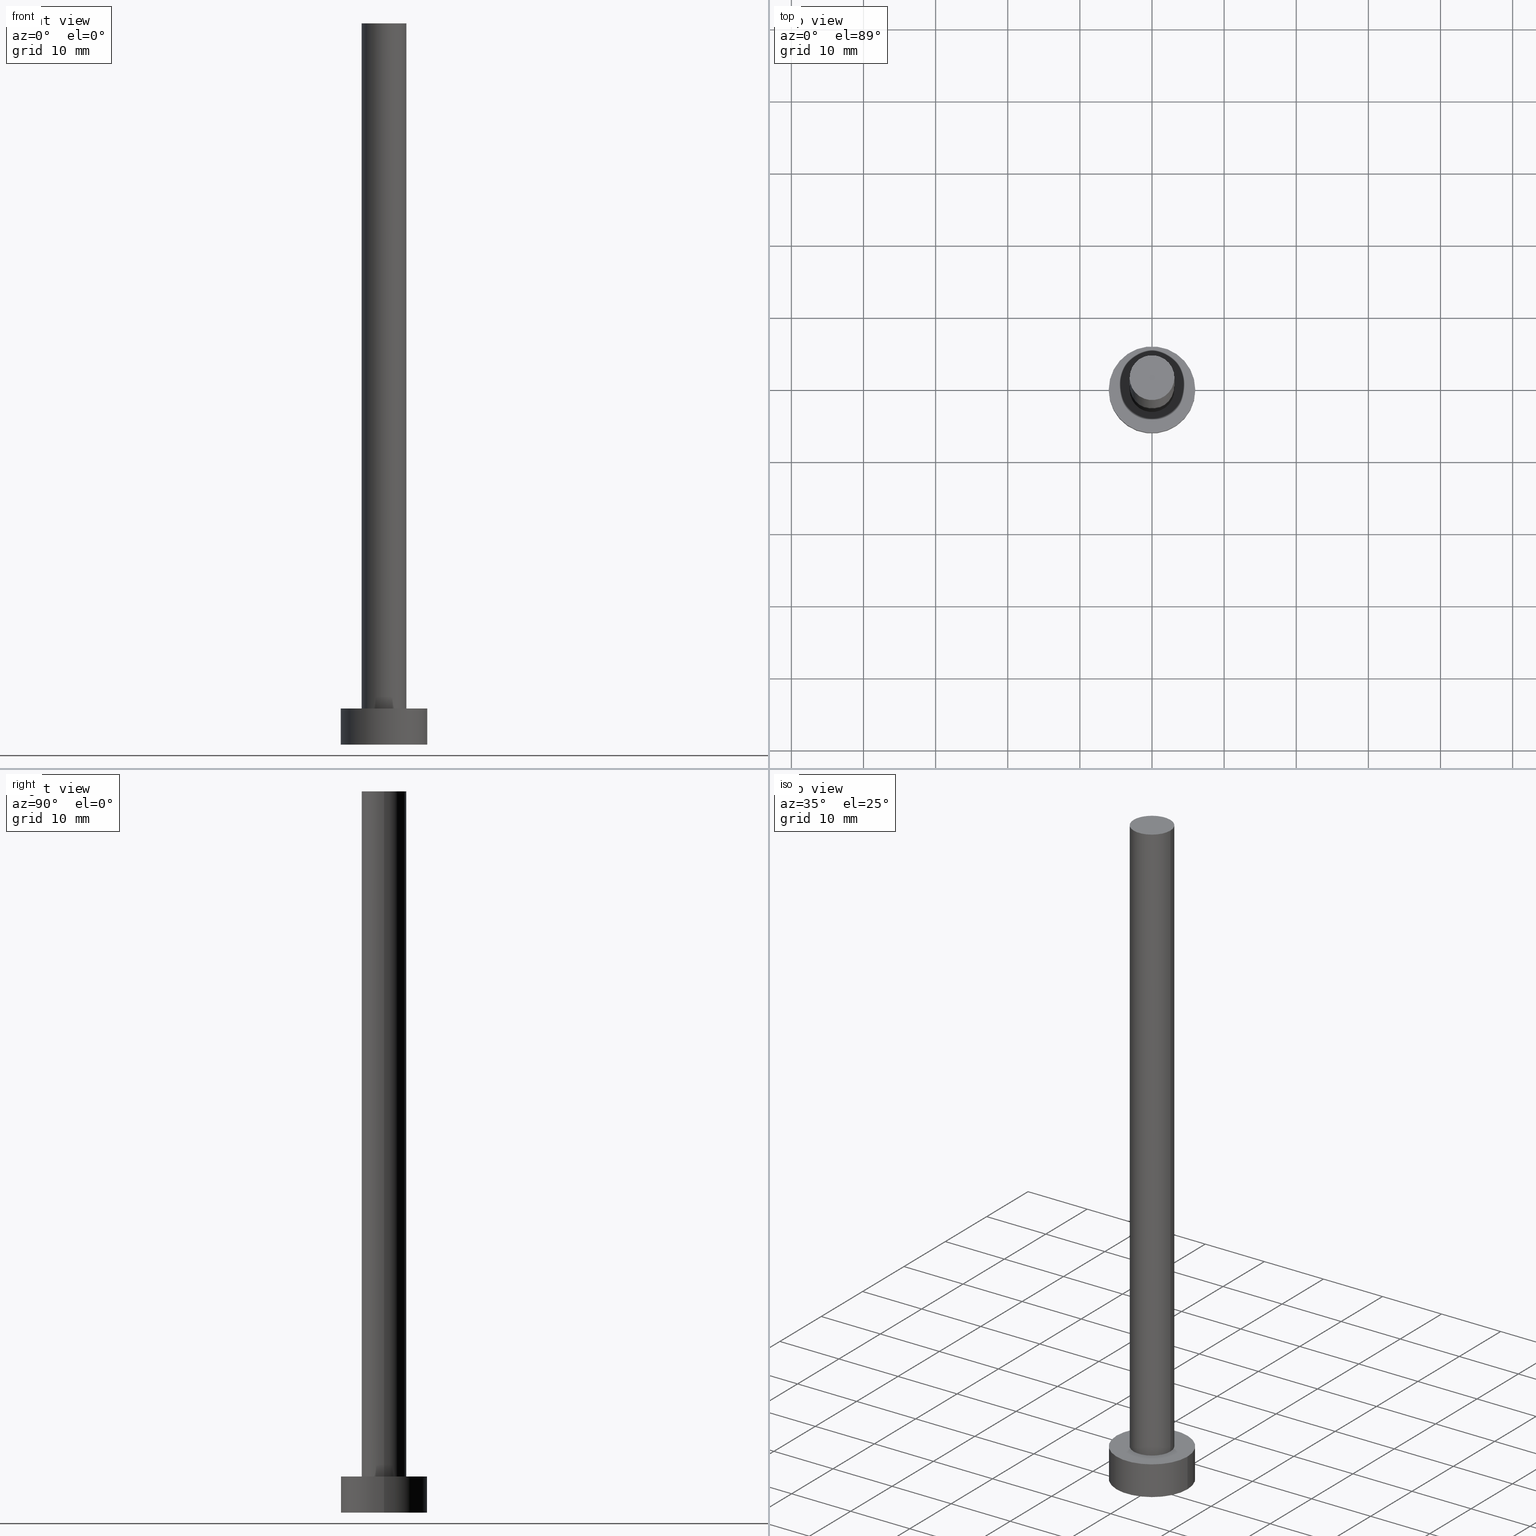
[diagram: canonical four-view strip — front | top / right | iso, engineering-drawing reading convention]
A machine part, canonical four-view strip (front | top / right | iso — engineering-drawing reading convention). The complete STEP part file that produces these views, byte-faithful:
ISO-10303-21;
HEADER;
FILE_DESCRIPTION (( 'STEP AP203' ),
    '1' );
FILE_NAME ('ae26.STEP',
    '2023-02-13T14:06:12',
    ( '' ),
    ( '' ),
    'SwSTEP 2.0',
    'SolidWorks 2019',
    '' );
FILE_SCHEMA (( 'CONFIG_CONTROL_DESIGN' ));
ENDSEC;

DATA;
#1 = CYLINDRICAL_SURFACE ( 'NONE', #151, 3.100000000000000089 ) ;
#2 = PERSON_AND_ORGANIZATION ( #43, #50 ) ;
#3 = DIRECTION ( 'NONE',  ( -0.000000000000000000, -0.000000000000000000, -1.000000000000000000 ) ) ;
#4 = PRODUCT_RELATED_PRODUCT_CATEGORY ( 'detail', '', ( #253 ) ) ;
#5 = VERTEX_POINT ( 'NONE', #123 ) ;
#6 = DIRECTION ( 'NONE',  ( -1.000000000000000000, 0.000000000000000000, 0.000000000000000000 ) ) ;
#7 = DIRECTION ( 'NONE',  ( 0.000000000000000000, 0.000000000000000000, 1.000000000000000000 ) ) ;
#8 = CARTESIAN_POINT ( 'NONE',  ( -6.000000000000000888, 0.000000000000000000, 5.000000000000000000 ) ) ;
#9 = CYLINDRICAL_SURFACE ( 'NONE', #167, 6.000000000000000888 ) ;
#10 = DIRECTION ( 'NONE',  ( -0.000000000000000000, -0.000000000000000000, -1.000000000000000000 ) ) ;
#11 = EDGE_CURVE ( 'NONE', #116, #5, #95, .T. ) ;
#12 = DIRECTION ( 'NONE',  ( 1.000000000000000000, 0.000000000000000000, 0.000000000000000000 ) ) ;
#13 = PRODUCT_DEFINITION ( 'NEZN�M�', '', #246, #177 ) ;
#14 = SECURITY_CLASSIFICATION ( '', '', #55 ) ;
#15 = COORDINATED_UNIVERSAL_TIME_OFFSET ( 1, 0, .AHEAD. ) ;
#16 = DATE_TIME_ROLE ( 'creation_date' ) ;
#17 = AXIS2_PLACEMENT_3D ( 'NONE', #41, #98, #147 ) ;
#18 = CALENDAR_DATE ( 2023, 13, 2 ) ;
#19 = UNCERTAINTY_MEASURE_WITH_UNIT (LENGTH_MEASURE( 1.000000000000000082E-05 ), #190, 'distance_accuracy_value', 'NONE');
#20 = ORIENTED_EDGE ( 'NONE', *, *, #196, .F. ) ;
#21 = PERSON_AND_ORGANIZATION ( #43, #50 ) ;
#22 = ORIENTED_EDGE ( 'NONE', *, *, #255, .F. ) ;
#23 = MANIFOLD_SOLID_BREP ( 'P�idat vysunut�m3', #125 ) ;
#24 = ORIENTED_EDGE ( 'NONE', *, *, #176, .T. ) ;
#25 = ORIENTED_EDGE ( 'NONE', *, *, #66, .T. ) ;
#26 = AXIS2_PLACEMENT_3D ( 'NONE', #97, #110, #229 ) ;
#27 = LINE ( 'NONE', #150, #186 ) ;
#28 = CARTESIAN_POINT ( 'NONE',  ( 0.000000000000000000, 0.000000000000000000, 0.000000000000000000 ) ) ;
#29 = DIRECTION ( 'NONE',  ( -1.000000000000000000, 0.000000000000000000, 0.000000000000000000 ) ) ;
#30 = CIRCLE ( 'NONE', #82, 6.000000000000000888 ) ;
#31 = DIRECTION ( 'NONE',  ( -0.000000000000000000, -0.000000000000000000, -1.000000000000000000 ) ) ;
#32 = APPLICATION_CONTEXT ( 'configuration controlled 3d designs of mechanical parts and assemblies' ) ;
#33 = FACE_BOUND ( 'NONE', #141, .T. ) ;
#34 = PERSON_AND_ORGANIZATION_ROLE ( 'creator' ) ;
#35 = DATE_AND_TIME ( #207, #232 ) ;
#36 = APPROVAL_DATE_TIME ( #35, #250 ) ;
#37 = COORDINATED_UNIVERSAL_TIME_OFFSET ( 1, 0, .AHEAD. ) ;
#38 = EDGE_CURVE ( 'NONE', #237, #116, #137, .T. ) ;
#39 = ADVANCED_FACE ( 'NONE', ( #179 ), #1, .T. ) ;
#40 = ORIENTED_EDGE ( 'NONE', *, *, #11, .F. ) ;
#41 = CARTESIAN_POINT ( 'NONE',  ( 0.000000000000000000, 0.000000000000000000, 100.0000000000000000 ) ) ;
#42 = ORIENTED_EDGE ( 'NONE', *, *, #101, .T. ) ;
#43 = PERSON ( 'NEUR�EN�', 'NEUR�EN�', 'NEUR�EN�', ('NEUR�EN�'), ('NEUR�EN�'), ('NEUR�EN�') ) ;
#44 = EDGE_LOOP ( 'NONE', ( #65, #118, #84, #62 ) ) ;
#45 = LOCAL_TIME ( 15, 6, 12.00000000000000000, #133 ) ;
#46 = CC_DESIGN_DATE_AND_TIME_ASSIGNMENT ( #175, #191, ( #14 ) ) ;
#47 = CARTESIAN_POINT ( 'NONE',  ( 0.000000000000000000, 0.000000000000000000, 5.000000000000000000 ) ) ;
#48 = CARTESIAN_POINT ( 'NONE',  ( 0.000000000000000000, 0.000000000000000000, 100.0000000000000000 ) ) ;
#49 = CARTESIAN_POINT ( 'NONE',  ( 3.100000000000000089, 3.796405077356794918E-16, 5.000000000000000000 ) ) ;
#50 = ORGANIZATION ( 'NEUR�EN�', 'NEUR�EN�', '' ) ;
#51 = DIRECTION ( 'NONE',  ( 0.000000000000000000, 0.000000000000000000, 1.000000000000000000 ) ) ;
#52 = CARTESIAN_POINT ( 'NONE',  ( -6.000000000000000888, 0.000000000000000000, 0.000000000000000000 ) ) ;
#53 = AXIS2_PLACEMENT_3D ( 'NONE', #204, #146, #166 ) ;
#54 = COORDINATED_UNIVERSAL_TIME_OFFSET ( 1, 0, .AHEAD. ) ;
#55 = SECURITY_CLASSIFICATION_LEVEL ( 'unclassified' ) ;
#56 = EDGE_CURVE ( 'NONE', #5, #121, #80, .T. ) ;
#57 = CC_DESIGN_PERSON_AND_ORGANIZATION_ASSIGNMENT ( #2, #158, ( #253 ) ) ;
#58 = DIRECTION ( 'NONE',  ( 0.000000000000000000, 0.000000000000000000, 1.000000000000000000 ) ) ;
#59 = APPROVAL_STATUS ( 'not_yet_approved' ) ;
#60 = ORIENTED_EDGE ( 'NONE', *, *, #85, .T. ) ;
#61 = COORDINATED_UNIVERSAL_TIME_OFFSET ( 1, 0, .AHEAD. ) ;
#62 = ORIENTED_EDGE ( 'NONE', *, *, #131, .F. ) ;
#63 = EDGE_LOOP ( 'NONE', ( #96, #42, #60, #20 ) ) ;
#64 = AXIS2_PLACEMENT_3D ( 'NONE', #199, #78, #218 ) ;
#65 = ORIENTED_EDGE ( 'NONE', *, *, #154, .F. ) ;
#66 = EDGE_CURVE ( 'NONE', #217, #160, #67, .T. ) ;
#67 = CIRCLE ( 'NONE', #127, 3.100000000000000089 ) ;
#68 = PLANE ( 'NONE',  #76 ) ;
#69 = FACE_OUTER_BOUND ( 'NONE', #182, .T. ) ;
#70 = DIRECTION ( 'NONE',  ( 1.000000000000000000, 0.000000000000000000, 0.000000000000000000 ) ) ;
#71 = CARTESIAN_POINT ( 'NONE',  ( 0.000000000000000000, 0.000000000000000000, 5.000000000000000000 ) ) ;
#72 = LOCAL_TIME ( 15, 6, 12.00000000000000000, #61 ) ;
#73 = CARTESIAN_POINT ( 'NONE',  ( 0.000000000000000000, 0.000000000000000000, 5.000000000000000000 ) ) ;
#74 = VECTOR ( 'NONE', #3, 1000.000000000000000 ) ;
#75 = ADVANCED_FACE ( 'NONE', ( #139 ), #216, .T. ) ;
#76 = AXIS2_PLACEMENT_3D ( 'NONE', #28, #105, #185 ) ;
#77 = APPROVAL_ROLE ( '' ) ;
#78 = DIRECTION ( 'NONE',  ( 0.000000000000000000, 0.000000000000000000, 1.000000000000000000 ) ) ;
#79 = DIRECTION ( 'NONE',  ( -0.000000000000000000, -0.000000000000000000, -1.000000000000000000 ) ) ;
#80 = CIRCLE ( 'NONE', #245, 6.000000000000000888 ) ;
#81 = VERTEX_POINT ( 'NONE', #49 ) ;
#82 = AXIS2_PLACEMENT_3D ( 'NONE', #148, #7, #12 ) ;
#83 = ORIENTED_EDGE ( 'NONE', *, *, #154, .T. ) ;
#84 = ORIENTED_EDGE ( 'NONE', *, *, #56, .T. ) ;
#85 = EDGE_CURVE ( 'NONE', #81, #238, #144, .T. ) ;
#86 = CARTESIAN_POINT ( 'NONE',  ( -3.100000000000000089, 0.000000000000000000, 5.000000000000000000 ) ) ;
#87 = LINE ( 'NONE', #8, #210 ) ;
#88 = AXIS2_PLACEMENT_3D ( 'NONE', #48, #10, #126 ) ;
#89 = CARTESIAN_POINT ( 'NONE',  ( -3.100000000000000089, 0.000000000000000000, 100.0000000000000000 ) ) ;
#90 = FACE_OUTER_BOUND ( 'NONE', #44, .T. ) ;
#91 = PLANE ( 'NONE',  #140 ) ;
#92 = APPROVAL_PERSON_ORGANIZATION ( #198, #209, #231 ) ;
#93 = APPROVAL_DATE_TIME ( #215, #202 ) ;
#94 = APPLICATION_PROTOCOL_DEFINITION ( 'international standard', 'config_control_design', 1994, #189 ) ;
#95 = LINE ( 'NONE', #254, #74 ) ;
#96 = ORIENTED_EDGE ( 'NONE', *, *, #66, .F. ) ;
#97 = CARTESIAN_POINT ( 'NONE',  ( 0.000000000000000000, 0.000000000000000000, 0.000000000000000000 ) ) ;
#98 = DIRECTION ( 'NONE',  ( 0.000000000000000000, 0.000000000000000000, 1.000000000000000000 ) ) ;
#99 = ORIENTED_EDGE ( 'NONE', *, *, #85, .F. ) ;
#100 = EDGE_CURVE ( 'NONE', #238, #81, #228, .T. ) ;
#101 = EDGE_CURVE ( 'NONE', #217, #81, #27, .T. ) ;
#102 = EDGE_LOOP ( 'NONE', ( #143, #22, #117, #157 ) ) ;
#103 = CARTESIAN_POINT ( 'NONE',  ( 0.000000000000000000, 0.000000000000000000, 5.000000000000000000 ) ) ;
#104 = DIRECTION ( 'NONE',  ( -0.000000000000000000, -0.000000000000000000, -1.000000000000000000 ) ) ;
#105 = DIRECTION ( 'NONE',  ( 0.000000000000000000, 0.000000000000000000, 1.000000000000000000 ) ) ;
#106 = DIRECTION ( 'NONE',  ( 0.000000000000000000, 0.000000000000000000, 1.000000000000000000 ) ) ;
#107 = PERSON_AND_ORGANIZATION_ROLE ( 'design_supplier' ) ;
#108 = APPROVAL_PERSON_ORGANIZATION ( #252, #202, #138 ) ;
#109 = CALENDAR_DATE ( 2023, 13, 2 ) ;
#110 = DIRECTION ( 'NONE',  ( 0.000000000000000000, 0.000000000000000000, 1.000000000000000000 ) ) ;
#111 = PERSON_AND_ORGANIZATION_ROLE ( 'classification_officer' ) ;
#112 = ADVANCED_BREP_SHAPE_REPRESENTATION ( 'ae26', ( #23, #26 ), #241 ) ;
#113 = CC_DESIGN_APPROVAL ( #209, ( #13 ) ) ;
#114 = CC_DESIGN_APPROVAL ( #202, ( #14 ) ) ;
#115 = ADVANCED_FACE ( 'NONE', ( #69 ), #68, .F. ) ;
#116 = VERTEX_POINT ( 'NONE', #243 ) ;
#117 = ORIENTED_EDGE ( 'NONE', *, *, #196, .T. ) ;
#118 = ORIENTED_EDGE ( 'NONE', *, *, #11, .T. ) ;
#119 = ADVANCED_FACE ( 'NONE', ( #90 ), #9, .T. ) ;
#120 = CC_DESIGN_PERSON_AND_ORGANIZATION_ASSIGNMENT ( #194, #107, ( #246 ) ) ;
#121 = VERTEX_POINT ( 'NONE', #52 ) ;
#122 = CC_DESIGN_APPROVAL ( #250, ( #246 ) ) ;
#123 = CARTESIAN_POINT ( 'NONE',  ( 6.000000000000000888, 7.347880794884120722E-16, 0.000000000000000000 ) ) ;
#124 = FACE_OUTER_BOUND ( 'NONE', #200, .T. ) ;
#125 = CLOSED_SHELL ( 'NONE', ( #165, #119, #249, #130, #115, #39, #75 ) ) ;
#126 = DIRECTION ( 'NONE',  ( -1.000000000000000000, 0.000000000000000000, 0.000000000000000000 ) ) ;
#127 = AXIS2_PLACEMENT_3D ( 'NONE', #235, #58, #136 ) ;
#128 = DIRECTION ( 'NONE',  ( -1.000000000000000000, 0.000000000000000000, 0.000000000000000000 ) ) ;
#129 = DIRECTION ( 'NONE',  ( 1.000000000000000000, 0.000000000000000000, 0.000000000000000000 ) ) ;
#130 = ADVANCED_FACE ( 'NONE', ( #33, #124 ), #91, .T. ) ;
#131 = EDGE_CURVE ( 'NONE', #237, #121, #87, .T. ) ;
#132 = DIRECTION ( 'NONE',  ( 1.000000000000000000, 0.000000000000000000, 0.000000000000000000 ) ) ;
#133 = COORDINATED_UNIVERSAL_TIME_OFFSET ( 1, 0, .AHEAD. ) ;
#134 = VECTOR ( 'NONE', #248, 1000.000000000000000 ) ;
#135 = PERSON_AND_ORGANIZATION ( #43, #50 ) ;
#136 = DIRECTION ( 'NONE',  ( 1.000000000000000000, 0.000000000000000000, 0.000000000000000000 ) ) ;
#137 = CIRCLE ( 'NONE', #64, 6.000000000000000888 ) ;
#138 = APPROVAL_ROLE ( '' ) ;
#139 = FACE_OUTER_BOUND ( 'NONE', #214, .T. ) ;
#140 = AXIS2_PLACEMENT_3D ( 'NONE', #222, #168, #226 ) ;
#141 = EDGE_LOOP ( 'NONE', ( #178, #99 ) ) ;
#142 = ORIENTED_EDGE ( 'NONE', *, *, #176, .F. ) ;
#143 = ORIENTED_EDGE ( 'NONE', *, *, #101, .F. ) ;
#144 = CIRCLE ( 'NONE', #240, 3.100000000000000089 ) ;
#145 = PRODUCT_DEFINITION_SHAPE ( 'NONE', 'NONE',  #13 ) ;
#146 = DIRECTION ( 'NONE',  ( 0.000000000000000000, 0.000000000000000000, 1.000000000000000000 ) ) ;
#147 = DIRECTION ( 'NONE',  ( 1.000000000000000000, 0.000000000000000000, -0.000000000000000000 ) ) ;
#148 = CARTESIAN_POINT ( 'NONE',  ( 0.000000000000000000, 0.000000000000000000, 0.000000000000000000 ) ) ;
#149 = LINE ( 'NONE', #163, #134 ) ;
#150 = CARTESIAN_POINT ( 'NONE',  ( 3.100000000000000089, 3.796405077356794918E-16, 100.0000000000000000 ) ) ;
#151 = AXIS2_PLACEMENT_3D ( 'NONE', #180, #79, #6 ) ;
#152 = APPLICATION_PROTOCOL_DEFINITION ( 'international standard', 'config_control_design', 1994, #32 ) ;
#153 = CALENDAR_DATE ( 2023, 13, 2 ) ;
#154 = EDGE_CURVE ( 'NONE', #116, #237, #201, .T. ) ;
#155 = CC_DESIGN_PERSON_AND_ORGANIZATION_ASSIGNMENT ( #234, #34, ( #246 ) ) ;
#156 = CARTESIAN_POINT ( 'NONE',  ( 0.000000000000000000, 0.000000000000000000, 0.000000000000000000 ) ) ;
#157 = ORIENTED_EDGE ( 'NONE', *, *, #100, .T. ) ;
#158 = PERSON_AND_ORGANIZATION_ROLE ( 'design_owner' ) ;
#159 = DIRECTION ( 'NONE',  ( 1.000000000000000000, 0.000000000000000000, 0.000000000000000000 ) ) ;
#160 = VERTEX_POINT ( 'NONE', #89 ) ;
#161 = ORIENTED_EDGE ( 'NONE', *, *, #38, .F. ) ;
#162 = AXIS2_PLACEMENT_3D ( 'NONE', #73, #206, #29 ) ;
#163 = CARTESIAN_POINT ( 'NONE',  ( -3.100000000000000089, 0.000000000000000000, 100.0000000000000000 ) ) ;
#164 = DIRECTION ( 'NONE',  ( 0.000000000000000000, 0.000000000000000000, 1.000000000000000000 ) ) ;
#165 = ADVANCED_FACE ( 'NONE', ( #183 ), #242, .T. ) ;
#166 = DIRECTION ( 'NONE',  ( 1.000000000000000000, 0.000000000000000000, 0.000000000000000000 ) ) ;
#167 = AXIS2_PLACEMENT_3D ( 'NONE', #47, #104, #128 ) ;
#168 = DIRECTION ( 'NONE',  ( 0.000000000000000000, 0.000000000000000000, 1.000000000000000000 ) ) ;
#169 = APPROVAL_PERSON_ORGANIZATION ( #21, #250, #77 ) ;
#170 = CC_DESIGN_SECURITY_CLASSIFICATION ( #14, ( #246 ) ) ;
#171 = APPROVAL_DATE_TIME ( #212, #209 ) ;
#172 =( NAMED_UNIT ( * ) SI_UNIT ( $, .STERADIAN. ) SOLID_ANGLE_UNIT ( ) );
#173 = PERSON_AND_ORGANIZATION_ROLE ( 'creator' ) ;
#174 = CIRCLE ( 'NONE', #230, 3.100000000000000089 ) ;
#175 = DATE_AND_TIME ( #18, #45 ) ;
#176 = EDGE_CURVE ( 'NONE', #121, #5, #30, .T. ) ;
#177 = DESIGN_CONTEXT ( 'detailed design', #189, 'design' ) ;
#178 = ORIENTED_EDGE ( 'NONE', *, *, #100, .F. ) ;
#179 = FACE_OUTER_BOUND ( 'NONE', #102, .T. ) ;
#180 = CARTESIAN_POINT ( 'NONE',  ( 0.000000000000000000, 0.000000000000000000, 100.0000000000000000 ) ) ;
#181 = ORIENTED_EDGE ( 'NONE', *, *, #38, .T. ) ;
#182 = EDGE_LOOP ( 'NONE', ( #142, #220 ) ) ;
#183 = FACE_OUTER_BOUND ( 'NONE', #63, .T. ) ;
#184 = CC_DESIGN_PERSON_AND_ORGANIZATION_ASSIGNMENT ( #135, #111, ( #14 ) ) ;
#185 = DIRECTION ( 'NONE',  ( 1.000000000000000000, 0.000000000000000000, -0.000000000000000000 ) ) ;
#186 = VECTOR ( 'NONE', #31, 1000.000000000000000 ) ;
#187 = CARTESIAN_POINT ( 'NONE',  ( -6.000000000000000888, 0.000000000000000000, 5.000000000000000000 ) ) ;
#188 = CARTESIAN_POINT ( 'NONE',  ( 0.000000000000000000, 0.000000000000000000, 100.0000000000000000 ) ) ;
#189 = APPLICATION_CONTEXT ( 'configuration controlled 3d designs of mechanical parts and assemblies' ) ;
#190 =( LENGTH_UNIT ( ) NAMED_UNIT ( * ) SI_UNIT ( .MILLI., .METRE. ) );
#191 = DATE_TIME_ROLE ( 'classification_date' ) ;
#192 = SHAPE_DEFINITION_REPRESENTATION ( #145, #112 ) ;
#193 = MECHANICAL_CONTEXT ( 'NONE', #32, 'mechanical' ) ;
#194 = PERSON_AND_ORGANIZATION ( #43, #50 ) ;
#195 = AXIS2_PLACEMENT_3D ( 'NONE', #103, #106, #132 ) ;
#196 = EDGE_CURVE ( 'NONE', #160, #238, #149, .T. ) ;
#197 = ORIENTED_EDGE ( 'NONE', *, *, #255, .T. ) ;
#198 = PERSON_AND_ORGANIZATION ( #43, #50 ) ;
#199 = CARTESIAN_POINT ( 'NONE',  ( 0.000000000000000000, 0.000000000000000000, 5.000000000000000000 ) ) ;
#200 = EDGE_LOOP ( 'NONE', ( #181, #83 ) ) ;
#201 = CIRCLE ( 'NONE', #195, 6.000000000000000888 ) ;
#202 = APPROVAL ( #59, 'NEUR�EN�' ) ;
#203 = EDGE_LOOP ( 'NONE', ( #40, #161, #239, #24 ) ) ;
#204 = CARTESIAN_POINT ( 'NONE',  ( 0.000000000000000000, 0.000000000000000000, 5.000000000000000000 ) ) ;
#205 = CARTESIAN_POINT ( 'NONE',  ( 3.100000000000000089, 3.796405077356794918E-16, 100.0000000000000000 ) ) ;
#206 = DIRECTION ( 'NONE',  ( -0.000000000000000000, -0.000000000000000000, -1.000000000000000000 ) ) ;
#207 = CALENDAR_DATE ( 2023, 13, 2 ) ;
#208 = PERSON_AND_ORGANIZATION ( #43, #50 ) ;
#209 = APPROVAL ( #236, 'NEUR�EN�' ) ;
#210 = VECTOR ( 'NONE', #244, 1000.000000000000000 ) ;
#211 = DATE_AND_TIME ( #109, #72 ) ;
#212 = DATE_AND_TIME ( #153, #224 ) ;
#213 = CC_DESIGN_PERSON_AND_ORGANIZATION_ASSIGNMENT ( #208, #173, ( #13 ) ) ;
#214 = EDGE_LOOP ( 'NONE', ( #197, #25 ) ) ;
#215 = DATE_AND_TIME ( #227, #247 ) ;
#216 = PLANE ( 'NONE',  #17 ) ;
#217 = VERTEX_POINT ( 'NONE', #205 ) ;
#218 = DIRECTION ( 'NONE',  ( 1.000000000000000000, 0.000000000000000000, 0.000000000000000000 ) ) ;
#219 = CC_DESIGN_DATE_AND_TIME_ASSIGNMENT ( #211, #16, ( #13 ) ) ;
#220 = ORIENTED_EDGE ( 'NONE', *, *, #56, .F. ) ;
#221 =( NAMED_UNIT ( * ) PLANE_ANGLE_UNIT ( ) SI_UNIT ( $, .RADIAN. ) );
#222 = CARTESIAN_POINT ( 'NONE',  ( 0.000000000000000000, 0.000000000000000000, 5.000000000000000000 ) ) ;
#223 = CYLINDRICAL_SURFACE ( 'NONE', #162, 6.000000000000000888 ) ;
#224 = LOCAL_TIME ( 15, 6, 12.00000000000000000, #54 ) ;
#225 = FACE_OUTER_BOUND ( 'NONE', #203, .T. ) ;
#226 = DIRECTION ( 'NONE',  ( 1.000000000000000000, 0.000000000000000000, -0.000000000000000000 ) ) ;
#227 = CALENDAR_DATE ( 2023, 13, 2 ) ;
#228 = CIRCLE ( 'NONE', #53, 3.100000000000000089 ) ;
#229 = DIRECTION ( 'NONE',  ( 1.000000000000000000, 0.000000000000000000, 0.000000000000000000 ) ) ;
#230 = AXIS2_PLACEMENT_3D ( 'NONE', #188, #51, #129 ) ;
#231 = APPROVAL_ROLE ( '' ) ;
#232 = LOCAL_TIME ( 15, 6, 12.00000000000000000, #37 ) ;
#233 = DIRECTION ( 'NONE',  ( 0.000000000000000000, 0.000000000000000000, 1.000000000000000000 ) ) ;
#234 = PERSON_AND_ORGANIZATION ( #43, #50 ) ;
#235 = CARTESIAN_POINT ( 'NONE',  ( 0.000000000000000000, 0.000000000000000000, 100.0000000000000000 ) ) ;
#236 = APPROVAL_STATUS ( 'not_yet_approved' ) ;
#237 = VERTEX_POINT ( 'NONE', #187 ) ;
#238 = VERTEX_POINT ( 'NONE', #86 ) ;
#239 = ORIENTED_EDGE ( 'NONE', *, *, #131, .T. ) ;
#240 = AXIS2_PLACEMENT_3D ( 'NONE', #71, #164, #70 ) ;
#241 =( GEOMETRIC_REPRESENTATION_CONTEXT ( 3 ) GLOBAL_UNCERTAINTY_ASSIGNED_CONTEXT ( ( #19 ) ) GLOBAL_UNIT_ASSIGNED_CONTEXT ( ( #190, #221, #172 ) ) REPRESENTATION_CONTEXT ( 'NONE', 'WORKASPACE' ) );
#242 = CYLINDRICAL_SURFACE ( 'NONE', #88, 3.100000000000000089 ) ;
#243 = CARTESIAN_POINT ( 'NONE',  ( 6.000000000000000888, 7.347880794884120722E-16, 5.000000000000000000 ) ) ;
#244 = DIRECTION ( 'NONE',  ( -0.000000000000000000, -0.000000000000000000, -1.000000000000000000 ) ) ;
#245 = AXIS2_PLACEMENT_3D ( 'NONE', #156, #233, #159 ) ;
#246 = PRODUCT_DEFINITION_FORMATION_WITH_SPECIFIED_SOURCE ( 'LIBOVOLN�', '', #253, .NOT_KNOWN. ) ;
#247 = LOCAL_TIME ( 15, 6, 12.00000000000000000, #15 ) ;
#248 = DIRECTION ( 'NONE',  ( -0.000000000000000000, -0.000000000000000000, -1.000000000000000000 ) ) ;
#249 = ADVANCED_FACE ( 'NONE', ( #225 ), #223, .T. ) ;
#250 = APPROVAL ( #251, 'NEUR�EN�' ) ;
#251 = APPROVAL_STATUS ( 'not_yet_approved' ) ;
#252 = PERSON_AND_ORGANIZATION ( #43, #50 ) ;
#253 = PRODUCT ( 'ae26', 'ae26', '', ( #193 ) ) ;
#254 = CARTESIAN_POINT ( 'NONE',  ( 6.000000000000000888, 7.347880794884120722E-16, 5.000000000000000000 ) ) ;
#255 = EDGE_CURVE ( 'NONE', #160, #217, #174, .T. ) ;
ENDSEC;
END-ISO-10303-21;
